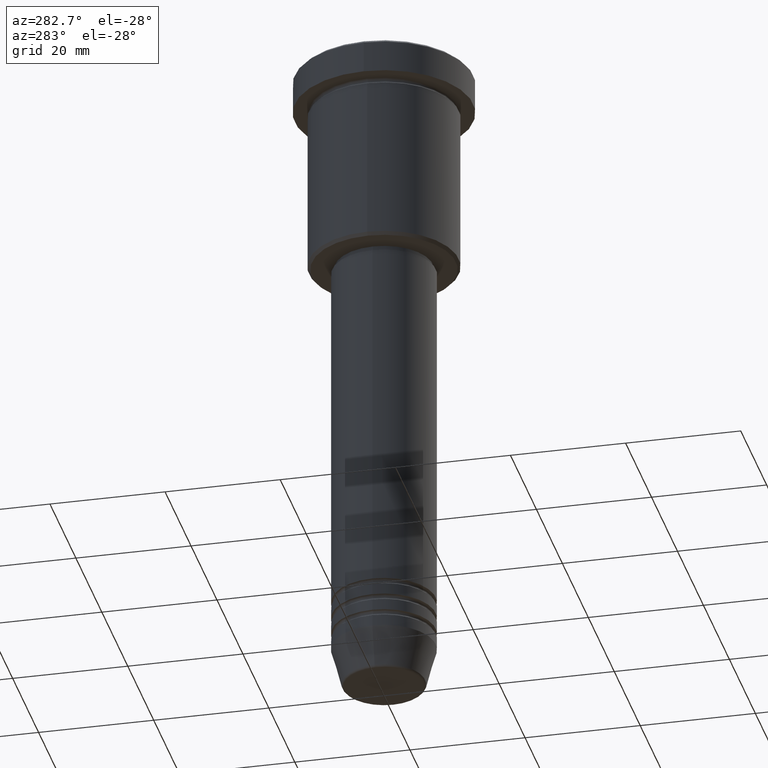
[diagram: clean part render]
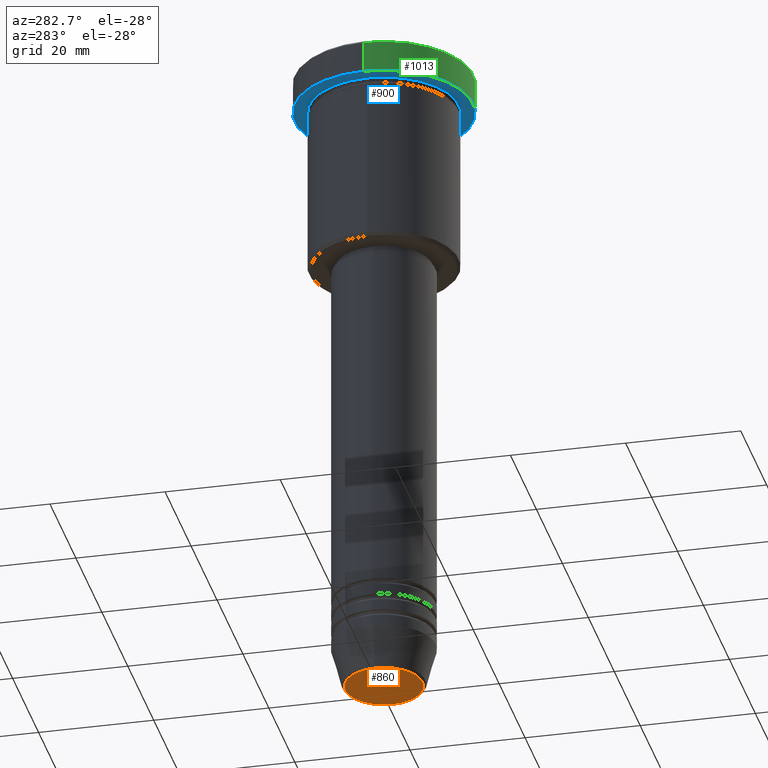
[diagram: same view with three faces highlighted in distinct colors, each labeled with its STEP entity id]
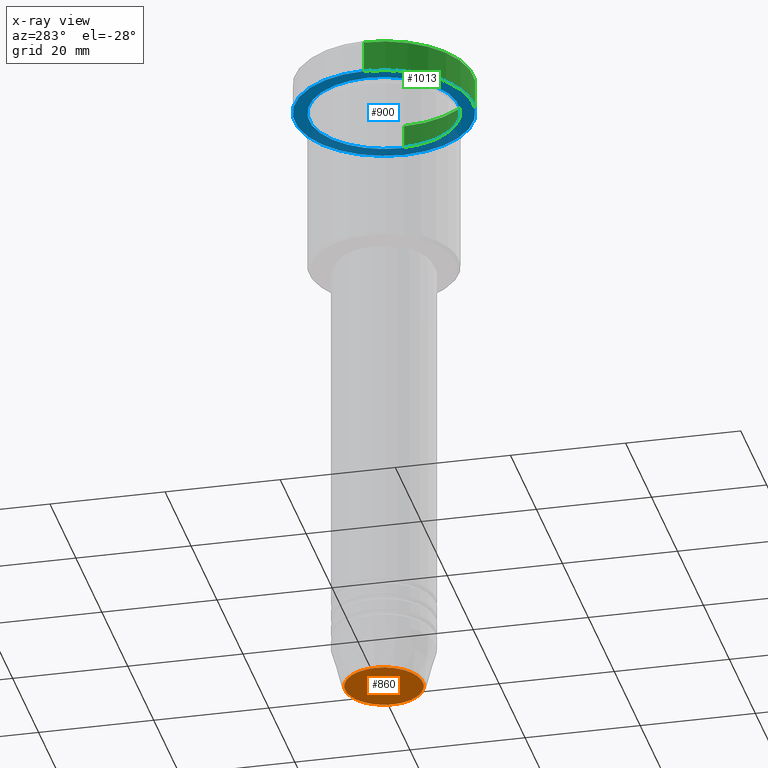
[diagram: x-ray of the same camera — body ghosted, the three highlighted faces saturated]
A machine part, auxiliary view with three faces highlighted in distinct colors.
The next image is the same camera in x-ray (body ghosted, the three faces saturated) — at least one of them is partly hidden behind the body in this view.
Their STEP definitions:

[orange] entity #860 — the highlighted planar face has unit normal (0, -0, 1).
#146 = VERTEX_POINT ( 'NONE', #550 ) ;
#154 = CIRCLE ( 'NONE', #820, 6.740692158992658278 ) ;
#161 = DIRECTION ( 'NONE',  ( 1.000000000000000000, 0.000000000000000000, 0.000000000000000000 ) ) ;
#230 = PLANE ( 'NONE',  #988 ) ;
#331 = FACE_OUTER_BOUND ( 'NONE', #889, .T. ) ;
#421 = CIRCLE ( 'NONE', #896, 6.740692158992658278 ) ;
#479 = CARTESIAN_POINT ( 'NONE',  ( 6.740692158992658278, 0.000000000000000000, -116.0000000000000000 ) ) ;
#550 = CARTESIAN_POINT ( 'NONE',  ( -6.740692158992658278, 8.550696569392689626E-16, -116.0000000000000000 ) ) ;
#628 = ORIENTED_EDGE ( 'NONE', *, *, #1051, .T. ) ;
#629 = CARTESIAN_POINT ( 'NONE',  ( 0.000000000000000000, 0.000000000000000000, -116.0000000000000000 ) ) ;
#701 = DIRECTION ( 'NONE',  ( 0.000000000000000000, -0.000000000000000000, 1.000000000000000000 ) ) ;
#783 = EDGE_CURVE ( 'NONE', #1159, #146, #421, .T. ) ;
#810 = DIRECTION ( 'NONE',  ( 1.000000000000000000, 0.000000000000000000, 0.000000000000000000 ) ) ;
#820 = AXIS2_PLACEMENT_3D ( 'NONE', #629, #901, #810 ) ;
#860 = ADVANCED_FACE ( 'NONE', ( #331 ), #230, .F. ) ;
#863 = DIRECTION ( 'NONE',  ( 1.000000000000000000, 0.000000000000000000, 0.000000000000000000 ) ) ;
#870 = CARTESIAN_POINT ( 'NONE',  ( 0.000000000000000000, 0.000000000000000000, -116.0000000000000000 ) ) ;
#889 = EDGE_LOOP ( 'NONE', ( #1047, #628 ) ) ;
#896 = AXIS2_PLACEMENT_3D ( 'NONE', #1034, #1112, #863 ) ;
#901 = DIRECTION ( 'NONE',  ( 0.000000000000000000, 0.000000000000000000, -1.000000000000000000 ) ) ;
#988 = AXIS2_PLACEMENT_3D ( 'NONE', #870, #701, #161 ) ;
#1034 = CARTESIAN_POINT ( 'NONE',  ( 0.000000000000000000, 0.000000000000000000, -116.0000000000000000 ) ) ;
#1047 = ORIENTED_EDGE ( 'NONE', *, *, #783, .T. ) ;
#1051 = EDGE_CURVE ( 'NONE', #146, #1159, #154, .T. ) ;
#1112 = DIRECTION ( 'NONE',  ( 0.000000000000000000, 0.000000000000000000, -1.000000000000000000 ) ) ;
#1159 = VERTEX_POINT ( 'NONE', #479 ) ;

[blue] entity #900 — the highlighted planar face has unit normal (0, 0, -1).
#30 = AXIS2_PLACEMENT_3D ( 'NONE', #570, #648, #728 ) ;
#47 = EDGE_LOOP ( 'NONE', ( #1129, #403 ) ) ;
#124 = EDGE_CURVE ( 'NONE', #136, #1144, #184, .T. ) ;
#136 = VERTEX_POINT ( 'NONE', #270 ) ;
#143 = DIRECTION ( 'NONE',  ( -0.000000000000000000, -0.000000000000000000, 1.000000000000000000 ) ) ;
#175 = ORIENTED_EDGE ( 'NONE', *, *, #879, .F. ) ;
#184 = CIRCLE ( 'NONE', #30, 15.50000000000000000 ) ;
#245 = AXIS2_PLACEMENT_3D ( 'NONE', #1131, #398, #1030 ) ;
#270 = CARTESIAN_POINT ( 'NONE',  ( -15.50000000000000000, 1.898202538678397557E-15, -5.999999999999995559 ) ) ;
#287 = CARTESIAN_POINT ( 'NONE',  ( 15.50000000000000000, 0.000000000000000000, -5.999999999999995559 ) ) ;
#308 = CARTESIAN_POINT ( 'NONE',  ( 13.00000000000000000, 1.592040838891559095E-15, -5.999999999999994671 ) ) ;
#321 = CIRCLE ( 'NONE', #245, 13.00000000000000000 ) ;
#337 = CARTESIAN_POINT ( 'NONE',  ( 0.000000000000000000, 15.50000000000000000, -5.999999999999995559 ) ) ;
#348 = PLANE ( 'NONE',  #1137 ) ;
#351 = VERTEX_POINT ( 'NONE', #308 ) ;
#372 = EDGE_LOOP ( 'NONE', ( #175, #502 ) ) ;
#398 = DIRECTION ( 'NONE',  ( -0.000000000000000000, -0.000000000000000000, 1.000000000000000000 ) ) ;
#403 = ORIENTED_EDGE ( 'NONE', *, *, #967, .T. ) ;
#436 = FACE_OUTER_BOUND ( 'NONE', #372, .T. ) ;
#502 = ORIENTED_EDGE ( 'NONE', *, *, #124, .F. ) ;
#536 = CARTESIAN_POINT ( 'NONE',  ( 0.000000000000000000, 0.000000000000000000, -5.999999999999995559 ) ) ;
#561 = CARTESIAN_POINT ( 'NONE',  ( 0.000000000000000000, 0.000000000000000000, -5.999999999999995559 ) ) ;
#570 = CARTESIAN_POINT ( 'NONE',  ( 0.000000000000000000, 0.000000000000000000, -5.999999999999995559 ) ) ;
#593 = CIRCLE ( 'NONE', #968, 15.50000000000000000 ) ;
#635 = AXIS2_PLACEMENT_3D ( 'NONE', #561, #646, #904 ) ;
#646 = DIRECTION ( 'NONE',  ( -0.000000000000000000, -0.000000000000000000, 1.000000000000000000 ) ) ;
#648 = DIRECTION ( 'NONE',  ( -0.000000000000000000, -0.000000000000000000, 1.000000000000000000 ) ) ;
#694 = EDGE_CURVE ( 'NONE', #780, #351, #321, .T. ) ;
#697 = DIRECTION ( 'NONE',  ( 0.000000000000000000, 0.000000000000000000, -1.000000000000000000 ) ) ;
#717 = DIRECTION ( 'NONE',  ( -1.000000000000000000, 0.000000000000000000, -0.000000000000000000 ) ) ;
#728 = DIRECTION ( 'NONE',  ( 1.000000000000000000, 0.000000000000000000, 0.000000000000000000 ) ) ;
#765 = CARTESIAN_POINT ( 'NONE',  ( -13.00000000000000000, 0.000000000000000000, -5.999999999999994671 ) ) ;
#780 = VERTEX_POINT ( 'NONE', #765 ) ;
#878 = CIRCLE ( 'NONE', #635, 13.00000000000000000 ) ;
#879 = EDGE_CURVE ( 'NONE', #1144, #136, #593, .T. ) ;
#900 = ADVANCED_FACE ( 'NONE', ( #974, #436 ), #348, .T. ) ;
#904 = DIRECTION ( 'NONE',  ( -1.000000000000000000, 0.000000000000000000, 0.000000000000000000 ) ) ;
#967 = EDGE_CURVE ( 'NONE', #351, #780, #878, .T. ) ;
#968 = AXIS2_PLACEMENT_3D ( 'NONE', #536, #143, #1161 ) ;
#974 = FACE_BOUND ( 'NONE', #47, .T. ) ;
#1030 = DIRECTION ( 'NONE',  ( -1.000000000000000000, 0.000000000000000000, 0.000000000000000000 ) ) ;
#1129 = ORIENTED_EDGE ( 'NONE', *, *, #694, .T. ) ;
#1131 = CARTESIAN_POINT ( 'NONE',  ( 0.000000000000000000, 0.000000000000000000, -5.999999999999995559 ) ) ;
#1137 = AXIS2_PLACEMENT_3D ( 'NONE', #337, #697, #717 ) ;
#1144 = VERTEX_POINT ( 'NONE', #287 ) ;
#1161 = DIRECTION ( 'NONE',  ( 1.000000000000000000, 0.000000000000000000, 0.000000000000000000 ) ) ;

[green] entity #1013 — the highlighted cylindrical surface (partial cylindrical patch) has radius 15.5 mm, axis along (-0, -0, 1).
#30 = AXIS2_PLACEMENT_3D ( 'NONE', #570, #648, #728 ) ;
#31 = LINE ( 'NONE', #400, #110 ) ;
#32 = AXIS2_PLACEMENT_3D ( 'NONE', #499, #302, #1031 ) ;
#37 = LINE ( 'NONE', #396, #576 ) ;
#53 = EDGE_LOOP ( 'NONE', ( #1093, #798, #486, #120 ) ) ;
#104 = DIRECTION ( 'NONE',  ( 1.000000000000000000, 0.000000000000000000, 0.000000000000000000 ) ) ;
#110 = VECTOR ( 'NONE', #1121, 1000.000000000000000 ) ;
#120 = ORIENTED_EDGE ( 'NONE', *, *, #329, .T. ) ;
#124 = EDGE_CURVE ( 'NONE', #136, #1144, #184, .T. ) ;
#136 = VERTEX_POINT ( 'NONE', #270 ) ;
#184 = CIRCLE ( 'NONE', #30, 15.50000000000000000 ) ;
#270 = CARTESIAN_POINT ( 'NONE',  ( -15.50000000000000000, 1.898202538678397557E-15, -5.999999999999995559 ) ) ;
#287 = CARTESIAN_POINT ( 'NONE',  ( 15.50000000000000000, 0.000000000000000000, -5.999999999999995559 ) ) ;
#293 = DIRECTION ( 'NONE',  ( -0.000000000000000000, -0.000000000000000000, 1.000000000000000000 ) ) ;
#302 = DIRECTION ( 'NONE',  ( 0.000000000000000000, 0.000000000000000000, -1.000000000000000000 ) ) ;
#329 = EDGE_CURVE ( 'NONE', #777, #718, #708, .T. ) ;
#334 = EDGE_CURVE ( 'NONE', #1144, #777, #31, .T. ) ;
#393 = CARTESIAN_POINT ( 'NONE',  ( 15.50000000000000000, 0.000000000000000000, -0.4999999999999709677 ) ) ;
#396 = CARTESIAN_POINT ( 'NONE',  ( -15.50000000000000000, 1.898202538678397557E-15, 0.000000000000000000 ) ) ;
#400 = CARTESIAN_POINT ( 'NONE',  ( 15.50000000000000000, 0.000000000000000000, 0.000000000000000000 ) ) ;
#469 = CARTESIAN_POINT ( 'NONE',  ( 0.000000000000000000, 0.000000000000000000, 0.000000000000000000 ) ) ;
#486 = ORIENTED_EDGE ( 'NONE', *, *, #334, .T. ) ;
#499 = CARTESIAN_POINT ( 'NONE',  ( 0.000000000000000000, 0.000000000000000000, -0.4999999999999709677 ) ) ;
#548 = DIRECTION ( 'NONE',  ( -0.000000000000000000, -0.000000000000000000, 1.000000000000000000 ) ) ;
#570 = CARTESIAN_POINT ( 'NONE',  ( 0.000000000000000000, 0.000000000000000000, -5.999999999999995559 ) ) ;
#576 = VECTOR ( 'NONE', #293, 1000.000000000000000 ) ;
#648 = DIRECTION ( 'NONE',  ( -0.000000000000000000, -0.000000000000000000, 1.000000000000000000 ) ) ;
#671 = AXIS2_PLACEMENT_3D ( 'NONE', #469, #548, #104 ) ;
#708 = CIRCLE ( 'NONE', #32, 15.50000000000000000 ) ;
#718 = VERTEX_POINT ( 'NONE', #1037 ) ;
#721 = CYLINDRICAL_SURFACE ( 'NONE', #671, 15.50000000000000000 ) ;
#728 = DIRECTION ( 'NONE',  ( 1.000000000000000000, 0.000000000000000000, 0.000000000000000000 ) ) ;
#777 = VERTEX_POINT ( 'NONE', #393 ) ;
#798 = ORIENTED_EDGE ( 'NONE', *, *, #124, .T. ) ;
#994 = FACE_OUTER_BOUND ( 'NONE', #53, .T. ) ;
#1013 = ADVANCED_FACE ( 'NONE', ( #994 ), #721, .T. ) ;
#1031 = DIRECTION ( 'NONE',  ( 1.000000000000000000, 0.000000000000000000, 0.000000000000000000 ) ) ;
#1037 = CARTESIAN_POINT ( 'NONE',  ( -15.50000000000000000, 1.898202538678397557E-15, -0.4999999999999709677 ) ) ;
#1093 = ORIENTED_EDGE ( 'NONE', *, *, #1179, .F. ) ;
#1121 = DIRECTION ( 'NONE',  ( -0.000000000000000000, -0.000000000000000000, 1.000000000000000000 ) ) ;
#1144 = VERTEX_POINT ( 'NONE', #287 ) ;
#1179 = EDGE_CURVE ( 'NONE', #136, #718, #37, .T. ) ;